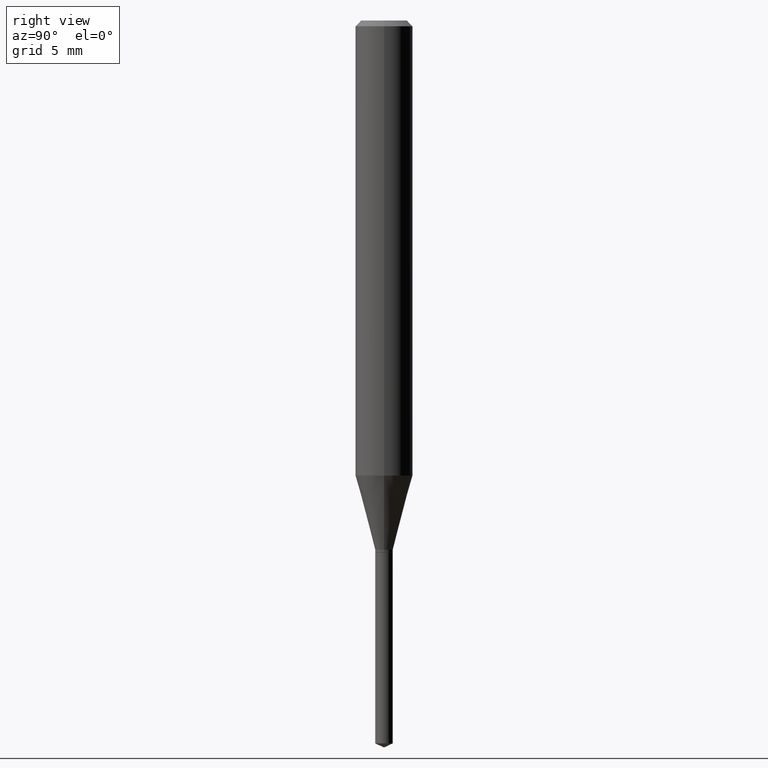
[diagram: clean part render]
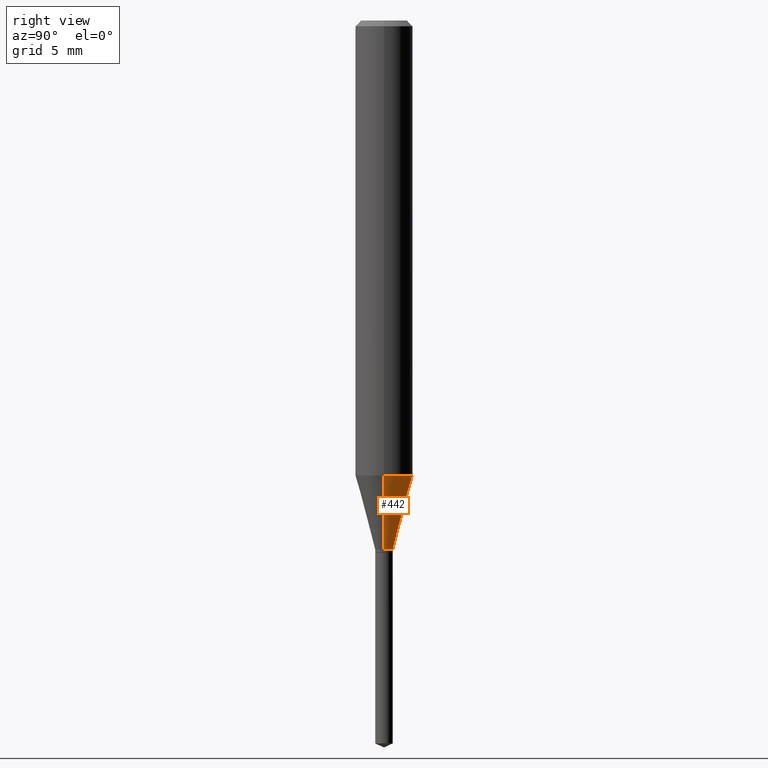
[diagram: same view with one face highlighted and labeled with its STEP entity id]
A machine part, right view. The second image highlights one B-rep face of the part: STEP entity #442.
In plain terms, the highlighted conical surface has half-angle 15 deg.
Its self-contained STEP definition (entity closure, byte-faithful):
#11 = AXIS2_PLACEMENT_3D ( 'NONE', #195, #58, #12 ) ;
#12 = DIRECTION ( 'NONE',  ( 1.000000000000000000, -6.982962677686262766E-15, 0.000000000000000000 ) ) ;
#14 = CARTESIAN_POINT ( 'NONE',  ( 0.01810000000000000150, -3.928963950600190549E-15, -1.089099999999999957 ) ) ;
#58 = DIRECTION ( 'NONE',  ( -2.445468806185136597E-29, 3.491481338843145583E-15, 1.000000000000000000 ) ) ;
#68 = AXIS2_PLACEMENT_3D ( 'NONE', #399, #166, #269 ) ;
#111 = DIRECTION ( 'NONE',  ( -0.2588190451025211281, 5.211531920934547886E-15, 0.9659258262890679791 ) ) ;
#113 = ORIENTED_EDGE ( 'NONE', *, *, #266, .T. ) ;
#117 = CARTESIAN_POINT ( 'NONE',  ( -0.01810000000000000150, -3.682518220241656550E-15, -1.089099999999999957 ) ) ;
#119 = ORIENTED_EDGE ( 'NONE', *, *, #430, .T. ) ;
#147 = CIRCLE ( 'NONE', #11, 0.01810000000000000150 ) ;
#148 = VERTEX_POINT ( 'NONE', #482 ) ;
#157 = CARTESIAN_POINT ( 'NONE',  ( 2.289625240354564916E-29, -3.268978029661690375E-15, -0.9362725194300541842 ) ) ;
#160 = CARTESIAN_POINT ( 'NONE',  ( -0.05905000000000011628, -2.849402544195350882E-15, -0.9362725194300541842 ) ) ;
#166 = DIRECTION ( 'NONE',  ( -2.445468806185136597E-29, 3.491481338843145583E-15, 1.000000000000000000 ) ) ;
#189 = CIRCLE ( 'NONE', #477, 0.05905000000000011628 ) ;
#195 = CARTESIAN_POINT ( 'NONE',  ( 2.663360076816232005E-29, -3.802572326134069746E-15, -1.089099999999999957 ) ) ;
#199 = LINE ( 'NONE', #14, #318 ) ;
#209 = EDGE_CURVE ( 'NONE', #148, #451, #199, .T. ) ;
#253 = EDGE_CURVE ( 'NONE', #451, #254, #189, .T. ) ;
#254 = VERTEX_POINT ( 'NONE', #160 ) ;
#264 = LINE ( 'NONE', #347, #380 ) ;
#266 = EDGE_CURVE ( 'NONE', #299, #254, #264, .T. ) ;
#267 = CONICAL_SURFACE ( 'NONE', #68, 0.01810000000000000150, 0.2617993877991498519 ) ;
#269 = DIRECTION ( 'NONE',  ( 1.000000000000000000, -6.982962677686262766E-15, 0.000000000000000000 ) ) ;
#273 = DIRECTION ( 'NONE',  ( -2.445468806185136597E-29, 3.491481338843145583E-15, 1.000000000000000000 ) ) ;
#275 = CARTESIAN_POINT ( 'NONE',  ( 0.05905000000000011628, -3.681321975779065690E-15, -0.9362725194300541842 ) ) ;
#299 = VERTEX_POINT ( 'NONE', #117 ) ;
#318 = VECTOR ( 'NONE', #437, 39.37007874015748854 ) ;
#327 = EDGE_LOOP ( 'NONE', ( #119, #113, #459, #332 ) ) ;
#332 = ORIENTED_EDGE ( 'NONE', *, *, #209, .F. ) ;
#347 = CARTESIAN_POINT ( 'NONE',  ( -0.01810000000000000150, -3.673964090961491577E-15, -1.089099999999999957 ) ) ;
#349 = FACE_OUTER_BOUND ( 'NONE', #327, .T. ) ;
#380 = VECTOR ( 'NONE', #111, 39.37007874015748854 ) ;
#399 = CARTESIAN_POINT ( 'NONE',  ( 2.663360076816232005E-29, -3.802572326134069746E-15, -1.089099999999999957 ) ) ;
#430 = EDGE_CURVE ( 'NONE', #148, #299, #147, .T. ) ;
#437 = DIRECTION ( 'NONE',  ( 0.2588190451025211281, 1.565188264969622954E-15, 0.9659258262890679791 ) ) ;
#442 = ADVANCED_FACE ( 'NONE', ( #349 ), #267, .T. ) ;
#451 = VERTEX_POINT ( 'NONE', #275 ) ;
#459 = ORIENTED_EDGE ( 'NONE', *, *, #253, .F. ) ;
#477 = AXIS2_PLACEMENT_3D ( 'NONE', #157, #273, #481 ) ;
#481 = DIRECTION ( 'NONE',  ( 1.000000000000000000, -6.982962677686266711E-15, 0.000000000000000000 ) ) ;
#482 = CARTESIAN_POINT ( 'NONE',  ( 0.01810000000000000150, -3.928963950600190549E-15, -1.089099999999999957 ) ) ;